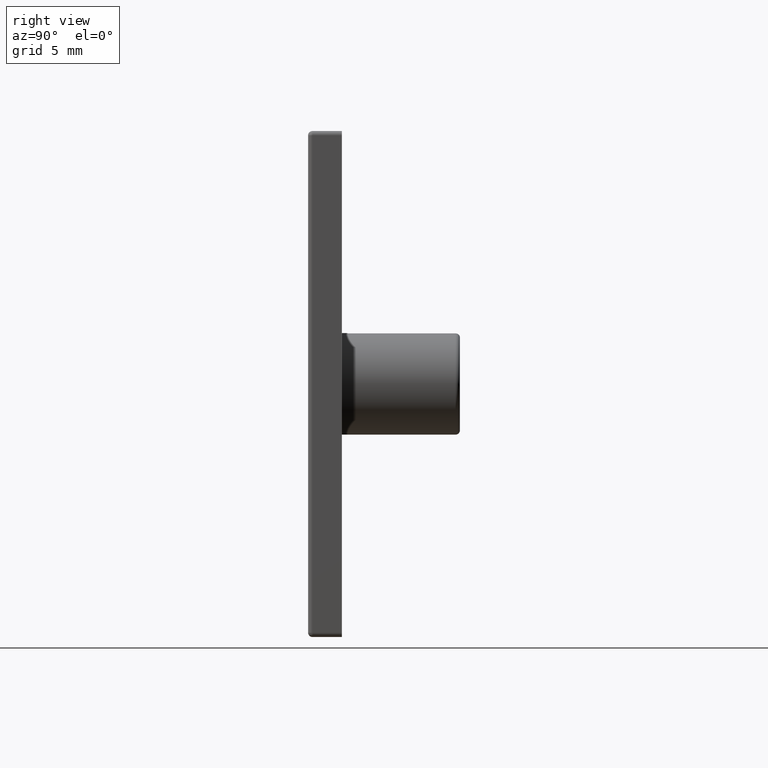
[diagram: clean part render]
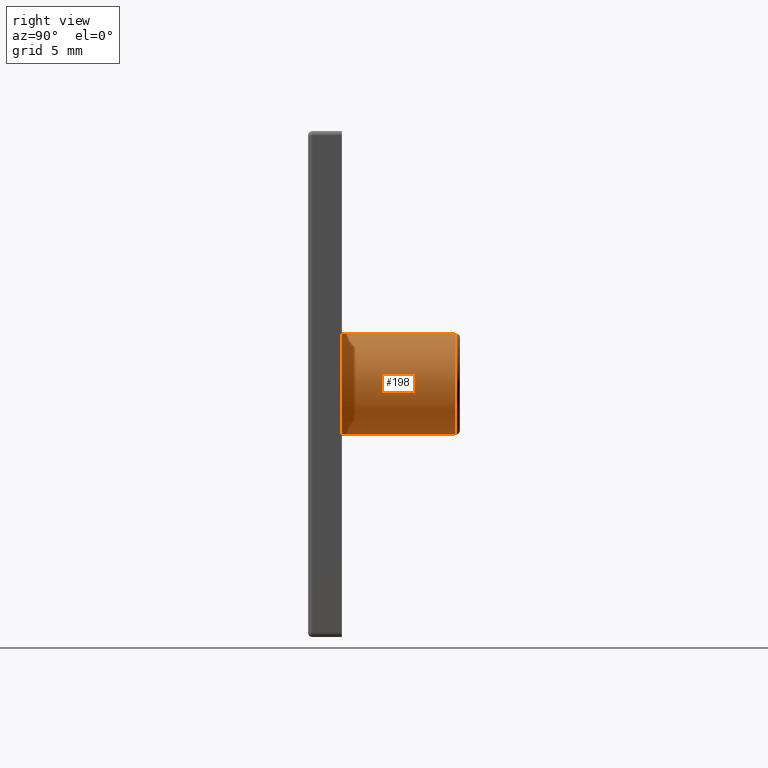
[diagram: same view with one face highlighted and labeled with its STEP entity id]
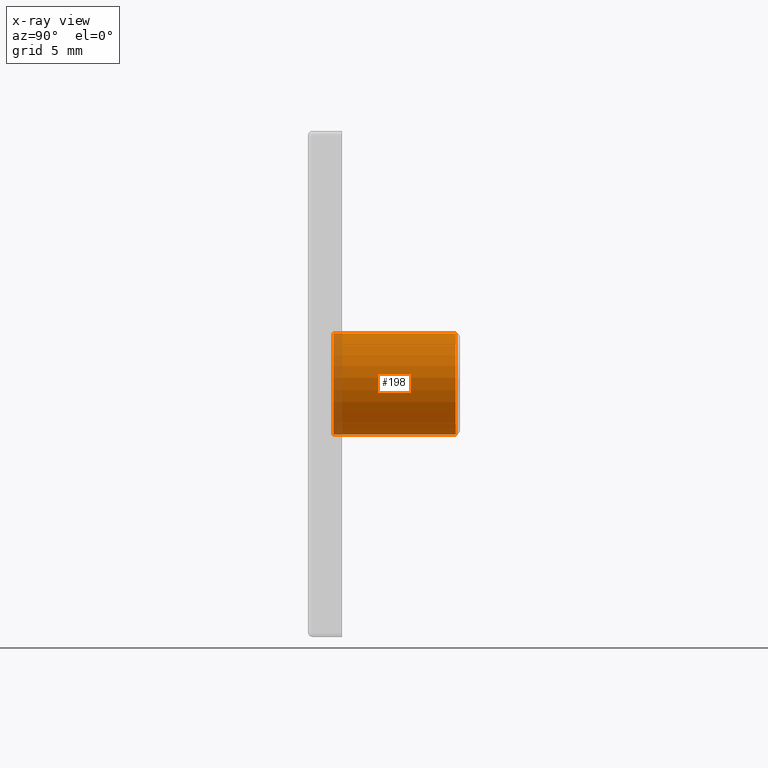
[diagram: x-ray of the same camera — body ghosted, the highlighted face saturated]
A machine part, right view. The second image highlights one B-rep face of the part: STEP entity #198.
The next image is the same camera in x-ray: the body ghosted, the highlighted face saturated — about 7% of this face is hidden behind the body in this view.
In plain terms, the highlighted cylindrical surface (partial cylindrical patch) has radius 3 mm, axis along (0, -1, 0).
Its self-contained STEP definition (entity closure, byte-faithful):
#46 = CARTESIAN_POINT ( 'NONE',  ( 3.673940397442059900E-016, 8.750000000000000000, 3.000000000000000000 ) ) ;
#49 = CARTESIAN_POINT ( 'NONE',  ( 0.0000000000000000000, 1.499999999999999600, -3.000000000000000000 ) ) ;
#71 = CARTESIAN_POINT ( 'NONE',  ( 0.0000000000000000000, 8.750000000000000000, -3.000000000000000000 ) ) ;
#73 = CARTESIAN_POINT ( 'NONE',  ( 3.673940397442059900E-016, 1.499999999999999600, 3.000000000000000000 ) ) ;
#109 = CARTESIAN_POINT ( 'NONE',  ( 0.0000000000000000000, 8.750000000000000000, 0.0000000000000000000 ) ) ;
#110 = DIRECTION ( 'NONE',  ( -0.0000000000000000000, 1.000000000000000000, 0.0000000000000000000 ) ) ;
#111 = DIRECTION ( 'NONE',  ( 0.0000000000000000000, 0.0000000000000000000, 1.000000000000000000 ) ) ;
#121 = CARTESIAN_POINT ( 'NONE',  ( 3.673940397442059900E-016, 8.750000000000000000, 3.000000000000000000 ) ) ;
#122 = DIRECTION ( 'NONE',  ( 0.0000000000000000000, -1.000000000000000000, 0.0000000000000000000 ) ) ;
#123 = CARTESIAN_POINT ( 'NONE',  ( 0.0000000000000000000, 1.499999999999999600, 0.0000000000000000000 ) ) ;
#124 = DIRECTION ( 'NONE',  ( 0.0000000000000000000, -1.000000000000000000, 0.0000000000000000000 ) ) ;
#125 = DIRECTION ( 'NONE',  ( 0.0000000000000000000, 0.0000000000000000000, -1.000000000000000000 ) ) ;
#126 = CARTESIAN_POINT ( 'NONE',  ( 0.0000000000000000000, 8.750000000000000000, -3.000000000000000000 ) ) ;
#127 = DIRECTION ( 'NONE',  ( 0.0000000000000000000, -1.000000000000000000, 0.0000000000000000000 ) ) ;
#198 = ADVANCED_FACE ( 'NONE', ( #696 ), #697, .T. ) ;
#260 = EDGE_LOOP ( 'NONE', ( #576, #575, #573, #574 ) ) ;
#356 = AXIS2_PLACEMENT_3D ( 'NONE', #109, #110, #111 ) ;
#360 = AXIS2_PLACEMENT_3D ( 'NONE', #123, #124, #125 ) ;
#461 = VERTEX_POINT ( 'NONE', #46 ) ;
#471 = VERTEX_POINT ( 'NONE', #49 ) ;
#506 = VERTEX_POINT ( 'NONE', #71 ) ;
#509 = VERTEX_POINT ( 'NONE', #73 ) ;
#524 = AXIS2_PLACEMENT_3D ( 'NONE', #843, #844, #845 ) ;
#573 = ORIENTED_EDGE ( 'NONE', *, *, #953, .F. ) ;
#574 = ORIENTED_EDGE ( 'NONE', *, *, #954, .F. ) ;
#575 = ORIENTED_EDGE ( 'NONE', *, *, #952, .T. ) ;
#576 = ORIENTED_EDGE ( 'NONE', *, *, #946, .F. ) ;
#696 = FACE_OUTER_BOUND ( 'NONE', #260, .T. ) ;
#697 = CYLINDRICAL_SURFACE ( 'NONE', #524, 3.000000000000000000 ) ;
#700 = CIRCLE ( 'NONE', #356, 3.000000000000000000 ) ;
#708 = LINE ( 'NONE', #121, #713 ) ;
#713 = VECTOR ( 'NONE', #122, 1000.000000000000000 ) ;
#716 = LINE ( 'NONE', #126, #719 ) ;
#717 = CIRCLE ( 'NONE', #360, 3.000000000000000000 ) ;
#719 = VECTOR ( 'NONE', #127, 1000.000000000000000 ) ;
#843 = CARTESIAN_POINT ( 'NONE',  ( 0.0000000000000000000, 8.750000000000000000, 0.0000000000000000000 ) ) ;
#844 = DIRECTION ( 'NONE',  ( 0.0000000000000000000, -1.000000000000000000, 0.0000000000000000000 ) ) ;
#845 = DIRECTION ( 'NONE',  ( 0.0000000000000000000, 0.0000000000000000000, -1.000000000000000000 ) ) ;
#946 = EDGE_CURVE ( 'NONE', #461, #506, #700, .T. ) ;
#952 = EDGE_CURVE ( 'NONE', #461, #509, #708, .T. ) ;
#953 = EDGE_CURVE ( 'NONE', #471, #509, #717, .T. ) ;
#954 = EDGE_CURVE ( 'NONE', #506, #471, #716, .T. ) ;